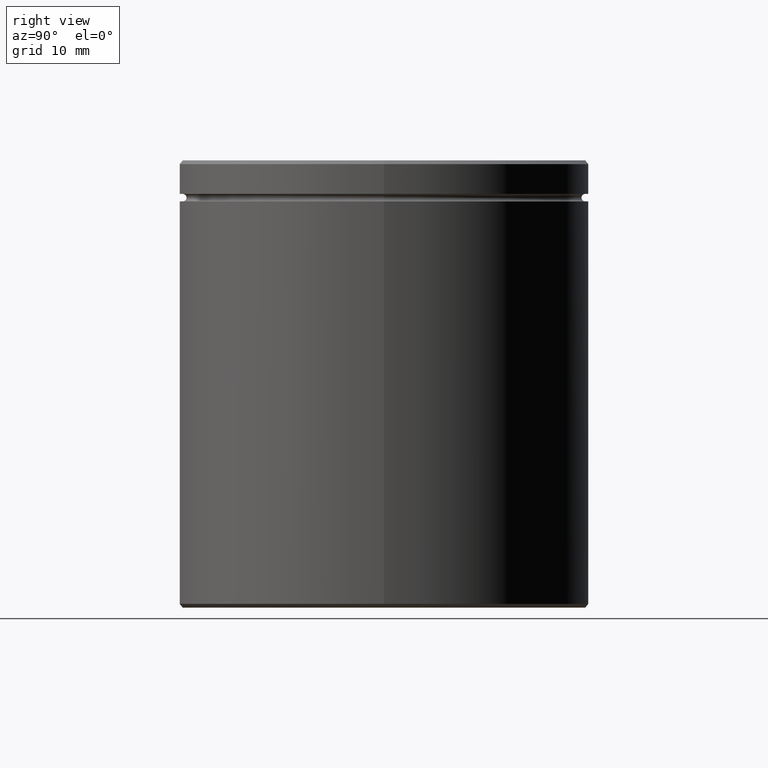
[diagram: clean part render]
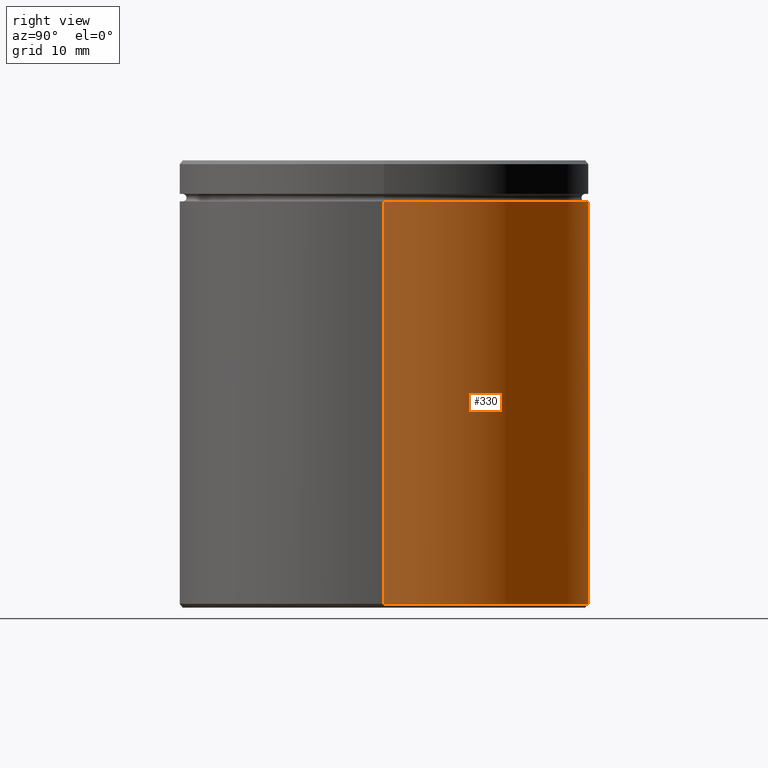
[diagram: same view with one face highlighted and labeled with its STEP entity id]
A machine part, right view. The second image highlights one B-rep face of the part: STEP entity #330.
In plain terms, the highlighted cylindrical surface (partial cylindrical patch) has radius 27.5 mm, axis along (-0, -0, 1).
Its self-contained STEP definition (entity closure, byte-faithful):
#7 = EDGE_CURVE ( 'NONE', #211, #463, #333, .T. ) ;
#29 = ORIENTED_EDGE ( 'NONE', *, *, #345, .T. ) ;
#45 = ORIENTED_EDGE ( 'NONE', *, *, #506, .F. ) ;
#60 = CIRCLE ( 'NONE', #472, 27.50000000000000000 ) ;
#71 = CARTESIAN_POINT ( 'NONE',  ( -27.50000000000000000, 3.367778697655221307E-15, -5.500000000000000000 ) ) ;
#90 = CARTESIAN_POINT ( 'NONE',  ( 0.000000000000000000, 0.000000000000000000, -5.500000000000000000 ) ) ;
#122 = VERTEX_POINT ( 'NONE', #170 ) ;
#147 = CARTESIAN_POINT ( 'NONE',  ( -27.50000000000000000, 3.367778697655221307E-15, 0.000000000000000000 ) ) ;
#153 = ORIENTED_EDGE ( 'NONE', *, *, #217, .F. ) ;
#154 = CARTESIAN_POINT ( 'NONE',  ( 27.50000000000000000, 0.000000000000000000, 0.000000000000000000 ) ) ;
#170 = CARTESIAN_POINT ( 'NONE',  ( 27.50000000000000000, 0.000000000000000000, -5.500000000000000000 ) ) ;
#176 = VERTEX_POINT ( 'NONE', #71 ) ;
#196 = VECTOR ( 'NONE', #375, 1000.000000000000000 ) ;
#200 = CARTESIAN_POINT ( 'NONE',  ( -27.50000000000000000, 3.367778697655221307E-15, -59.50000000000001421 ) ) ;
#211 = VERTEX_POINT ( 'NONE', #475 ) ;
#217 = EDGE_CURVE ( 'NONE', #122, #176, #60, .T. ) ;
#230 = FACE_OUTER_BOUND ( 'NONE', #314, .T. ) ;
#279 = DIRECTION ( 'NONE',  ( 1.000000000000000000, 0.000000000000000000, 0.000000000000000000 ) ) ;
#280 = DIRECTION ( 'NONE',  ( -0.000000000000000000, -0.000000000000000000, 1.000000000000000000 ) ) ;
#306 = DIRECTION ( 'NONE',  ( -0.000000000000000000, -0.000000000000000000, 1.000000000000000000 ) ) ;
#313 = CYLINDRICAL_SURFACE ( 'NONE', #457, 27.50000000000000000 ) ;
#314 = EDGE_LOOP ( 'NONE', ( #408, #29, #153, #45 ) ) ;
#316 = DIRECTION ( 'NONE',  ( 1.000000000000000000, 0.000000000000000000, 0.000000000000000000 ) ) ;
#328 = DIRECTION ( 'NONE',  ( -0.000000000000000000, -0.000000000000000000, 1.000000000000000000 ) ) ;
#330 = ADVANCED_FACE ( 'NONE', ( #230 ), #313, .T. ) ;
#333 = CIRCLE ( 'NONE', #564, 27.50000000000000000 ) ;
#345 = EDGE_CURVE ( 'NONE', #463, #176, #417, .T. ) ;
#350 = VECTOR ( 'NONE', #328, 1000.000000000000000 ) ;
#370 = LINE ( 'NONE', #154, #350 ) ;
#375 = DIRECTION ( 'NONE',  ( -0.000000000000000000, -0.000000000000000000, 1.000000000000000000 ) ) ;
#404 = DIRECTION ( 'NONE',  ( -0.000000000000000000, -0.000000000000000000, 1.000000000000000000 ) ) ;
#408 = ORIENTED_EDGE ( 'NONE', *, *, #7, .T. ) ;
#410 = CARTESIAN_POINT ( 'NONE',  ( 0.000000000000000000, 0.000000000000000000, -59.50000000000001421 ) ) ;
#417 = LINE ( 'NONE', #147, #196 ) ;
#457 = AXIS2_PLACEMENT_3D ( 'NONE', #487, #404, #279 ) ;
#463 = VERTEX_POINT ( 'NONE', #200 ) ;
#472 = AXIS2_PLACEMENT_3D ( 'NONE', #90, #306, #316 ) ;
#475 = CARTESIAN_POINT ( 'NONE',  ( 27.50000000000000000, 0.000000000000000000, -59.50000000000001421 ) ) ;
#487 = CARTESIAN_POINT ( 'NONE',  ( 0.000000000000000000, 0.000000000000000000, 0.000000000000000000 ) ) ;
#498 = DIRECTION ( 'NONE',  ( -1.000000000000000000, 0.000000000000000000, 0.000000000000000000 ) ) ;
#506 = EDGE_CURVE ( 'NONE', #211, #122, #370, .T. ) ;
#564 = AXIS2_PLACEMENT_3D ( 'NONE', #410, #280, #498 ) ;